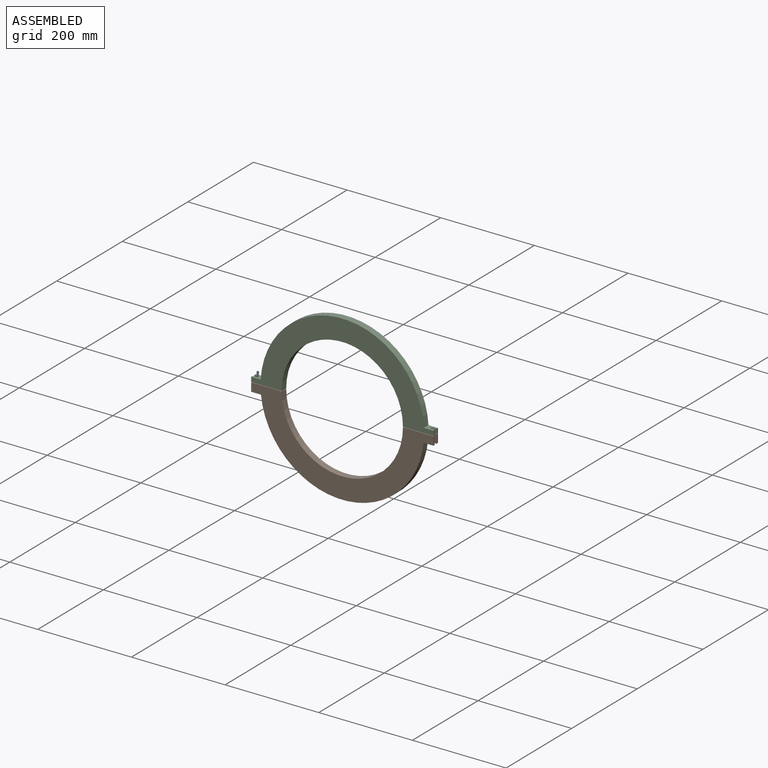
[diagram: assembled view]
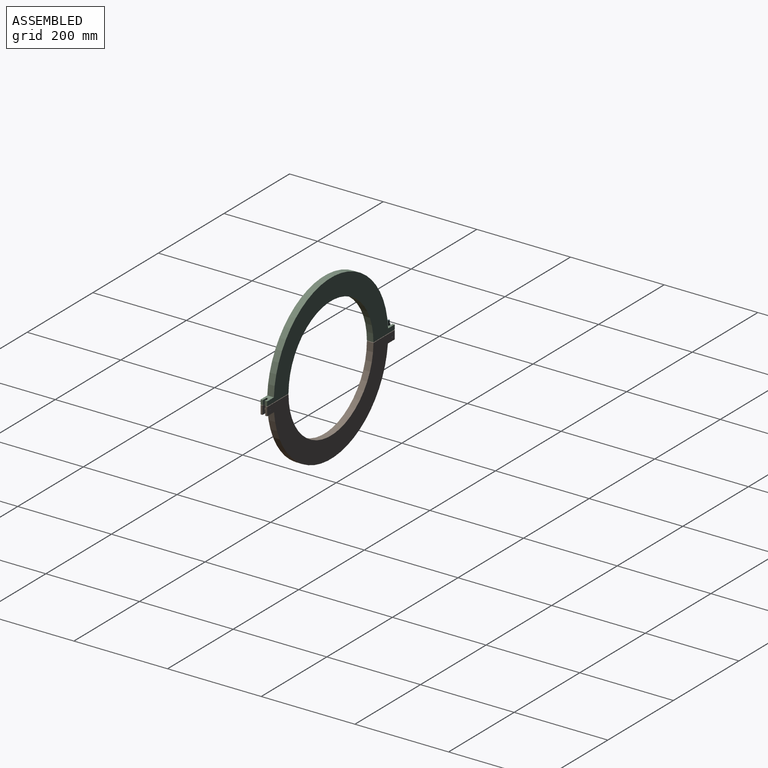
[diagram: assembled view, second angle]
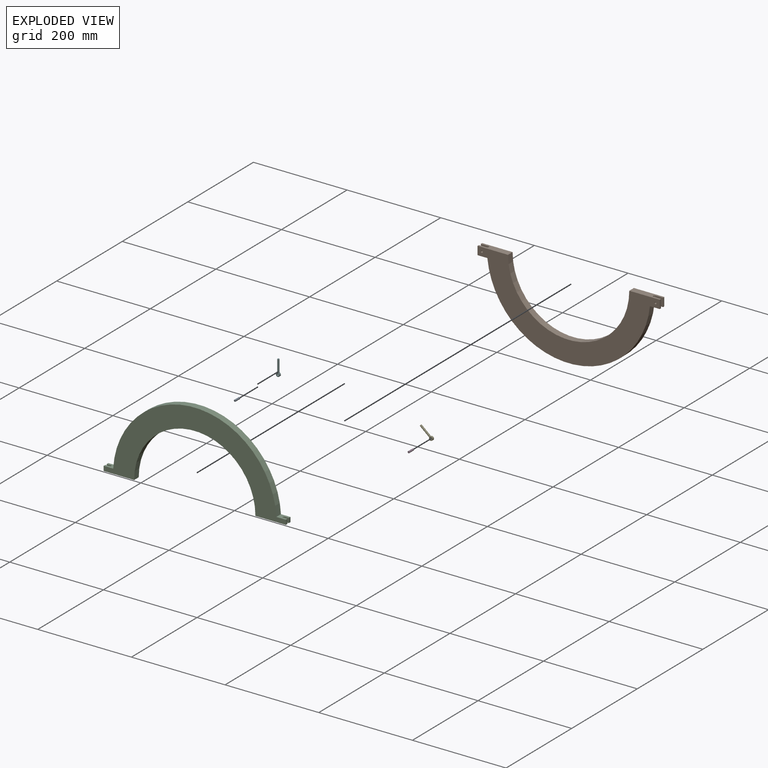
[diagram: exploded view]
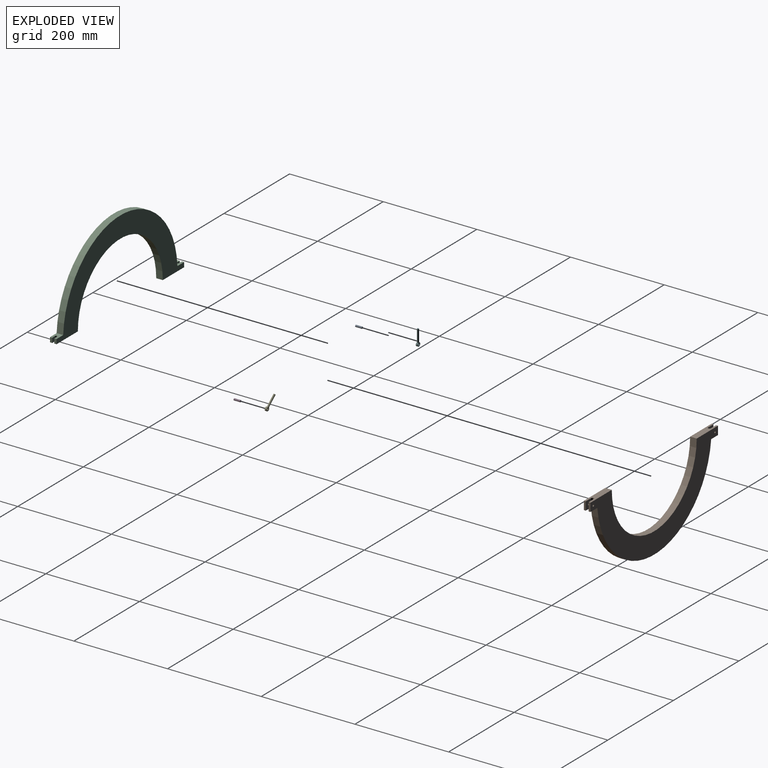
[diagram: exploded view, second angle]
ASSEMBLY  parts=6 mates=11
PART A: 3 faces, bbox 4x13.8x4 mm
  f0: cylinder r=2mm len=13.8mm, axis (0,1,0), area 173.4mm2, adj f1,f2
  f1: plane 4x4mm, normal (0,-1,0), area 12.6mm2, adj f0
  f2: plane 4x4mm, normal (0,1,0), area 12.6mm2, adj f0
PART B: 22 faces, bbox 389x14x174.5 mm
  f0: plane 18x4mm, normal (-1,0,0), area 72mm2, adj f1,f8,f13,f20
  f1: plane 20.93x14mm, normal (0,0,1), area 182.9mm2, adj f0,f6,f7,f12,f13,f19,f20,f21
  f2: cylinder r=2mm len=4mm, axis (0,-1,0), area 50.3mm2, adj f12,f21
  f3: plane 18x4mm, normal (1,0,0), area 72mm2, adj f4,f10,f13,f18
  f4: plane 20.93x14mm, normal (0,0,1), area 182.9mm2, adj f3,f6,f11,f12,f13,f16,f17,f18
  f5: cylinder r=2mm len=4mm, axis (0,-1,0), area 50.3mm2, adj f13,f18
  f6: cylinder r=174.5mm len=347.14mm, axis (0,1,0), area 7170mm2, adj f1,f4,f12,f13
  f7: plane 18x4mm, normal (-1,0,0), area 72mm2, adj f1,f8,f12,f21
  f8: plane 65x14mm, normal (0,0,-1), area 799.9mm2, adj f0,f7,f9,f12,f13,f19,f20,f21
  f9: cylinder r=129.5mm len=259mm, axis (0,1,0), area 5695.7mm2, adj f8,f10,f12,f13
  f10: plane 65x14mm, normal (0,0,-1), area 799.9mm2, adj f3,f9,f11,f12,f13,f16,f17,f18
  f11: plane 18x4mm, normal (1,0,0), area 72mm2, adj f4,f10,f12,f17
  f12: plane 389x174.5mm, normal (0,-1,0), area 22194.5mm2, adj f1,f2,f4,f6,f7,f8,f9,f10
  f13: plane 389x174.5mm, normal (0,1,0), area 22194.5mm2, adj f0,f1,f3,f4,f5,f6,f8,f9
  f14: cylinder r=2mm len=4mm, axis (0,-1,0), area 50.3mm2, adj f12,f17
  f15: cylinder r=2mm len=4mm, axis (0,-1,0), area 50.3mm2, adj f13,f20
  f16: cylinder r=3mm len=18mm, axis (0,0,1), area 169.6mm2, adj f4,f10,f17,f18
  f17: plane 18x16mm, normal (0,1,0), area 275.4mm2, adj f4,f10,f11,f14,f16
  f18: plane 18x16mm, normal (0,-1,0), area 275.4mm2, adj f3,f4,f5,f10,f16
  f19: cylinder r=3mm len=18mm, axis (0,0,1), area 169.6mm2, adj f1,f8,f20,f21
  f20: plane 18x16mm, normal (0,-1,0), area 275.4mm2, adj f0,f1,f8,f15,f19
  f21: plane 18x16mm, normal (0,1,0), area 275.4mm2, adj f1,f2,f7,f8,f19
PART C: 18 faces, bbox 389x14x174.5 mm
  f0: plane 10x4.8mm, normal (1,0,0), area 48mm2, adj f1,f5,f11,f16
  f1: plane 65x14mm, normal (0,0,-1), area 862.8mm2, adj f0,f8,f9,f10,f11,f15,f16,f17
  f2: plane 10x4.8mm, normal (-1,0,0), area 48mm2, adj f3,f4,f11,f14
  f3: plane 20.29x14mm, normal (0,0,1), area 236.8mm2, adj f2,f6,f7,f10,f11,f12,f13,f14
  f4: plane 65x14mm, normal (0,0,-1), area 862.8mm2, adj f2,f7,f8,f10,f11,f12,f13,f14
  f5: plane 20.29x14mm, normal (0,0,1), area 236.8mm2, adj f0,f6,f9,f10,f11,f15,f16,f17
  f6: cylinder r=174.5mm len=348.43mm, axis (0,1,0), area 7394.8mm2, adj f3,f5,f10,f11
  f7: plane 10x4.8mm, normal (-1,0,0), area 48mm2, adj f3,f4,f10,f12
  f8: cylinder r=129.5mm len=259mm, axis (0,1,0), area 5695.7mm2, adj f1,f4,f10,f11
  f9: plane 10x4.8mm, normal (1,0,0), area 48mm2, adj f1,f5,f10,f15
  f10: plane 389x174.5mm, normal (0,-1,0), area 21890.4mm2, adj f1,f3,f4,f5,f6,f7,f8,f9
  f11: plane 389x174.5mm, normal (0,1,0), area 21890.4mm2, adj f0,f1,f2,f3,f4,f5,f6,f8
  f12: plane 10x9mm, normal (0,1,0), area 90mm2, adj f3,f4,f7,f13
  f13: cylinder r=2.2mm len=10mm, axis (0,0,1), area 69.1mm2, adj f3,f4,f12,f14
  f14: plane 10x9mm, normal (0,-1,0), area 90mm2, adj f2,f3,f4,f13
  f15: plane 10x9mm, normal (0,1,0), area 90mm2, adj f1,f5,f9,f17
  f16: plane 10x9mm, normal (0,-1,0), area 90mm2, adj f0,f1,f5,f17
  f17: cylinder r=2.2mm len=10mm, axis (0,0,1), area 69.1mm2, adj f1,f5,f15,f16
PART D: same geometry as A
PART E: 6 faces, bbox 8x4x34.2 mm
  f0: cylinder r=4mm len=8mm, axis (0,1,0), area 87.2mm2, adj f1,f2,f4
  f1: plane 8x8mm, normal (0,-1,0), area 37.7mm2, adj f0,f3
  f2: plane 8x8mm, normal (0,1,0), area 37.7mm2, adj f0,f3
  f3: cylinder r=2mm len=4mm, axis (0,1,0), area 50mm2, adj f1,f2
  f4: cylinder r=1.99mm len=26.73mm, axis (0,0,-1), area 330.8mm2, adj f0,f5
  f5: plane 3.98x3.98mm, normal (0,0,1), area 12.4mm2, adj f4
PART F: same geometry as E
PLACE A rot(axis=(0.49,0,0.87),180deg) t=(-447.44,-261.67,107.78)mm
PLACE B rot(axis=(-1,0,0),180deg) t=(-261.94,-261.57,116.78)mm fixed
PLACE C t=(-261.94,-261.57,117.67)mm
PLACE D rot(axis=(0,-1,0),22.1deg) t=(-76.44,-261.67,107.78)mm
PLACE E rot(axis=(0,-1,0),49.9deg) t=(-76.44,-261.38,107.78)mm
PLACE F rot(axis=(0,0,-1),180deg) t=(-447.44,-261.38,107.78)mm
MATE parallel A.f0 <-> F.f3  axis (0,-1,0) through (-447.44,-268.57,107.78)mm
MATE planar B.f13 <-> C.f10  axis (0,-1,0) through (-261.94,-268.57,22.12)mm
MATE cylindrical F.f3 <-> A.f0  axis (0,-1,0) through (-447.44,-263.37,107.78)mm
MATE cylindrical D.f0 <-> B.f5  axis (0,1,0) through (-76.44,-261.67,107.78)mm
MATE planar B.f13 <-> D.f0  axis (0,-1,0) through (-261.94,-268.57,22.12)mm
MATE cylindrical B.f2 <-> A.f0  axis (0,1,0) through (-447.44,-268.57,107.78)mm
MATE planar B.f3 <-> C.f9  axis (1,0,0) through (-67.44,-266.57,107.78)mm
MATE cylindrical D.f0 <-> E.f3  axis (0,1,0) through (-76.44,-261.67,107.78)mm
MATE parallel C.f4 <-> B.f8  axis (0,0,-1) through (-422.45,-261.57,117.67)mm
MATE planar A.f0 <-> B.f13  axis (0,-1,0) through (-447.44,-268.57,107.78)mm
MATE parallel D.f0 <-> E.f3  axis (0,-1,0) through (-76.44,-268.57,107.78)mm
